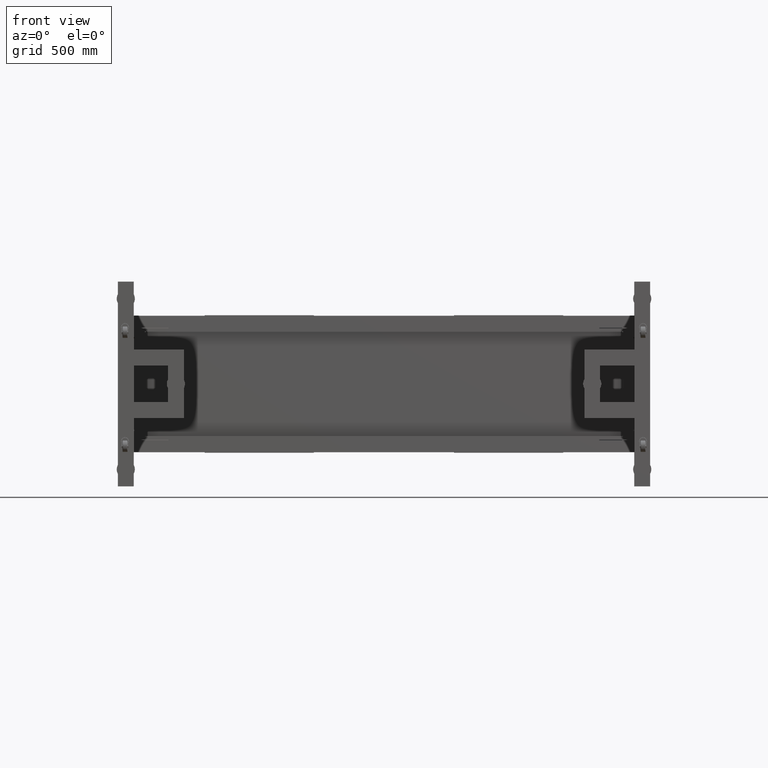
[diagram: clean part render]
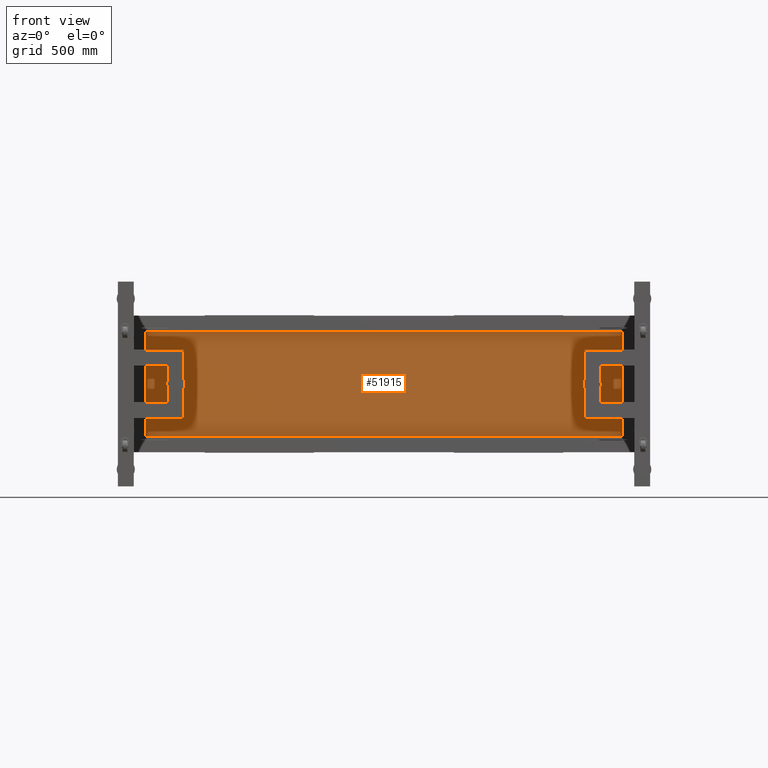
[diagram: same view with one face highlighted and labeled with its STEP entity id]
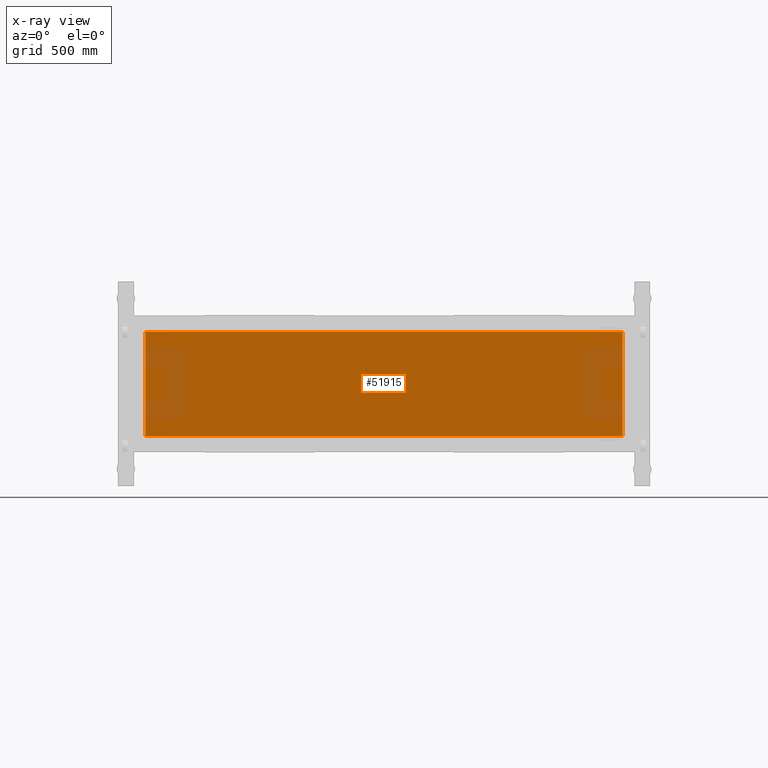
[diagram: x-ray of the same camera — body ghosted, the highlighted face saturated]
A machine part, front view. The second image highlights one B-rep face of the part: STEP entity #51915.
The next image is the same camera in x-ray: the body ghosted, the highlighted face saturated — about 7% of this face is hidden behind the body in this view.
In plain terms, the highlighted planar face has unit normal (0, 1, -0).
Its self-contained STEP definition (entity closure, byte-faithful):
#1877 = VERTEX_POINT ( 'NONE', #31688 ) ;
#3144 = CARTESIAN_POINT ( 'NONE',  ( 880.3175125628159776, 555.4410804020127443, -228.4899999999998954 ) ) ;
#6093 = DIRECTION ( 'NONE',  ( 0.000000000000000000, 1.000000000000000472E-15, 1.000000000000000000 ) ) ;
#8555 = ORIENTED_EDGE ( 'NONE', *, *, #57606, .F. ) ;
#10856 = VERTEX_POINT ( 'NONE', #79831 ) ;
#11287 = PLANE ( 'NONE',  #56512 ) ;
#16741 = ORIENTED_EDGE ( 'NONE', *, *, #73888, .T. ) ;
#28158 = VECTOR ( 'NONE', #6093, 1000.000000000000000 ) ;
#30036 = DIRECTION ( 'NONE',  ( -1.000000000000000000, 0.000000000000000000, 0.000000000000000000 ) ) ;
#31688 = CARTESIAN_POINT ( 'NONE',  ( -1216.662487437185973, 555.4410804020124033, -228.4899999999998954 ) ) ;
#32902 = ORIENTED_EDGE ( 'NONE', *, *, #67966, .F. ) ;
#33718 = VECTOR ( 'NONE', #30036, 1000.000000000000000 ) ;
#38922 = LINE ( 'NONE', #63480, #79469 ) ;
#43627 = FACE_OUTER_BOUND ( 'NONE', #78135, .T. ) ;
#43750 = CARTESIAN_POINT ( 'NONE',  ( -1216.662487437185973, 555.4410804020124033, -228.4899999999998954 ) ) ;
#45048 = DIRECTION ( 'NONE',  ( -2.653611717788264139E-31, 1.000000000000000472E-15, 1.000000000000000000 ) ) ;
#47671 = CARTESIAN_POINT ( 'NONE',  ( 1180.317512562814045, 555.4410804020124033, -228.4899999999998954 ) ) ;
#48561 = DIRECTION ( 'NONE',  ( 0.000000000000000000, 1.000000000000000000, -1.000000000000000472E-15 ) ) ;
#48877 = LINE ( 'NONE', #74635, #52493 ) ;
#49760 = CARTESIAN_POINT ( 'NONE',  ( -18.17248743718602455, 555.4410804020126307, 1.110223024625156540E-13 ) ) ;
#51915 = ADVANCED_FACE ( 'NONE', ( #43627 ), #11287, .F. ) ;
#52493 = VECTOR ( 'NONE', #61568, 1000.000000000000000 ) ;
#55872 = VERTEX_POINT ( 'NONE', #3144 ) ;
#56512 = AXIS2_PLACEMENT_3D ( 'NONE', #49760, #48561, #61648 ) ;
#57606 = EDGE_CURVE ( 'NONE', #55872, #1877, #72235, .T. ) ;
#61094 = EDGE_CURVE ( 'NONE', #1877, #10856, #62590, .T. ) ;
#61568 = DIRECTION ( 'NONE',  ( 1.000000000000000000, -0.000000000000000000, 0.000000000000000000 ) ) ;
#61648 = DIRECTION ( 'NONE',  ( 0.000000000000000000, 1.000000000000000472E-15, 1.000000000000000000 ) ) ;
#62590 = LINE ( 'NONE', #43750, #28158 ) ;
#63480 = CARTESIAN_POINT ( 'NONE',  ( 880.3175125628159776, 555.4410804020127443, -228.4899999999998954 ) ) ;
#65363 = VERTEX_POINT ( 'NONE', #67137 ) ;
#67137 = CARTESIAN_POINT ( 'NONE',  ( 880.3175125628159776, 555.4410804020131991, 228.4900000000081093 ) ) ;
#67966 = EDGE_CURVE ( 'NONE', #10856, #65363, #48877, .T. ) ;
#72235 = LINE ( 'NONE', #47671, #33718 ) ;
#73888 = EDGE_CURVE ( 'NONE', #55872, #65363, #38922, .T. ) ;
#74635 = CARTESIAN_POINT ( 'NONE',  ( -1216.662487437185973, 555.4410804020128580, 228.4900000000001228 ) ) ;
#76413 = ORIENTED_EDGE ( 'NONE', *, *, #61094, .F. ) ;
#78135 = EDGE_LOOP ( 'NONE', ( #8555, #16741, #32902, #76413 ) ) ;
#79469 = VECTOR ( 'NONE', #45048, 1000.000000000000000 ) ;
#79831 = CARTESIAN_POINT ( 'NONE',  ( -1216.662487437185973, 555.4410804020128580, 228.4900000000081093 ) ) ;